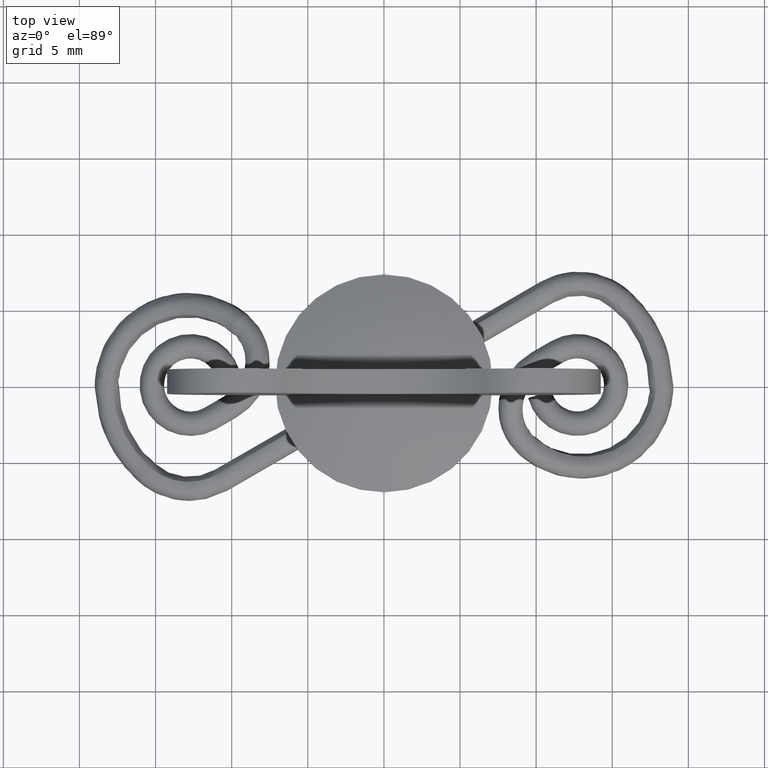
[diagram: clean part render]
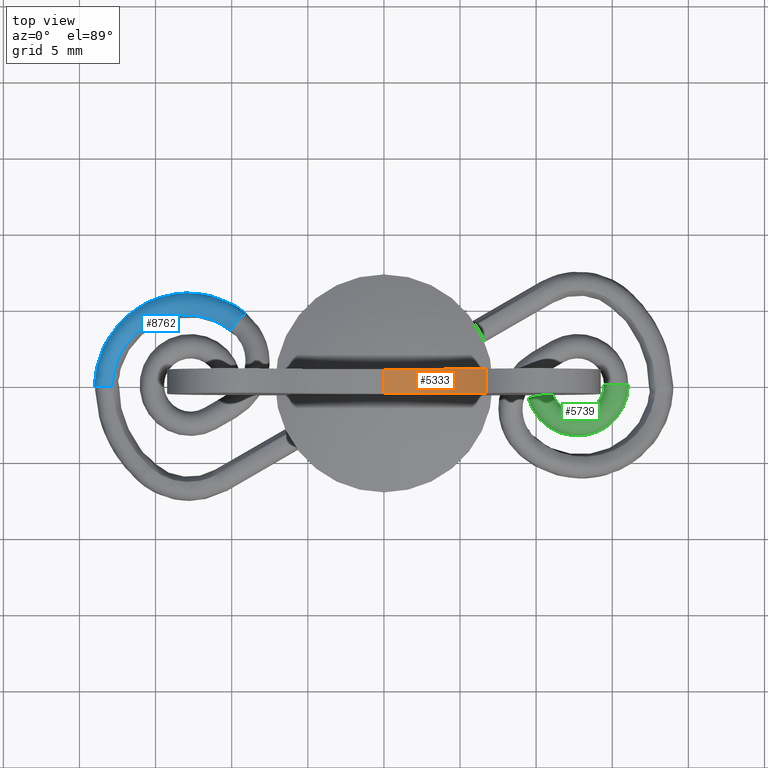
[diagram: same view with three faces highlighted in distinct colors, each labeled with its STEP entity id]
A machine part, top view with three faces highlighted in distinct colors.
Their STEP definitions:

[orange] entity #5333 — the highlighted cylindrical surface (partial cylindrical patch) has radius 10 mm, axis along (-0, -1, -0).
#6 = AXIS2_PLACEMENT_3D ( 'NONE', #5792, #1576, #6500 ) ;
#364 = DIRECTION ( 'NONE',  ( 0.0000000000000000000, 0.0000000000000000000, -1.000000000000000000 ) ) ;
#581 = DIRECTION ( 'NONE',  ( -0.0000000000000000000, -1.000000000000000000, -0.0000000000000000000 ) ) ;
#646 = CIRCLE ( 'NONE', #1977, 10.00000001227473900 ) ;
#1395 = ORIENTED_EDGE ( 'NONE', *, *, #6914, .F. ) ;
#1576 = DIRECTION ( 'NONE',  ( 0.0000000000000000000, 1.000000000000000000, 0.0000000000000000000 ) ) ;
#1684 = EDGE_LOOP ( 'NONE', ( #5639, #8971, #1395, #8544 ) ) ;
#1829 = CARTESIAN_POINT ( 'NONE',  ( -5.635136423459696800E-006, -0.8000000000000000400, 17.42661363855789600 ) ) ;
#1977 = AXIS2_PLACEMENT_3D ( 'NONE', #8289, #4066, #9002 ) ;
#2021 = VECTOR ( 'NONE', #581, 1000.000000000000000 ) ;
#2188 = EDGE_CURVE ( 'NONE', #4544, #8822, #646, .T. ) ;
#2514 = LINE ( 'NONE', #7103, #6032 ) ;
#2932 = CARTESIAN_POINT ( 'NONE',  ( -5.635136423459696800E-006, 0.8000000000000000400, 17.42661363855789600 ) ) ;
#3059 = CIRCLE ( 'NONE', #6, 10.00000001227473900 ) ;
#3079 = FACE_OUTER_BOUND ( 'NONE', #1684, .T. ) ;
#3582 = DIRECTION ( 'NONE',  ( -0.0000000000000000000, -1.000000000000000000, -0.0000000000000000000 ) ) ;
#3846 = CARTESIAN_POINT ( 'NONE',  ( 6.724131997629919000, -0.8000000000000000400, 20.02485890340211600 ) ) ;
#3921 = LINE ( 'NONE', #4804, #2021 ) ;
#4066 = DIRECTION ( 'NONE',  ( 0.0000000000000000000, 1.000000000000000000, 0.0000000000000000000 ) ) ;
#4544 = VERTEX_POINT ( 'NONE', #6043 ) ;
#4586 = DIRECTION ( 'NONE',  ( -0.0000000000000000000, -1.000000000000000000, -0.0000000000000000000 ) ) ;
#4804 = CARTESIAN_POINT ( 'NONE',  ( 6.724131997629919000, 0.8000000000000000400, 20.02485890340211600 ) ) ;
#5209 = VERTEX_POINT ( 'NONE', #1829 ) ;
#5333 = ADVANCED_FACE ( 'NONE', ( #3079 ), #8474, .F. ) ;
#5639 = ORIENTED_EDGE ( 'NONE', *, *, #2188, .T. ) ;
#5792 = CARTESIAN_POINT ( 'NONE',  ( -5.635136423459696800E-006, -0.8000000000000000400, 27.42661365083263200 ) ) ;
#6032 = VECTOR ( 'NONE', #3582, 1000.000000000000000 ) ;
#6043 = CARTESIAN_POINT ( 'NONE',  ( 6.724131997629919000, 0.8000000000000000400, 20.02485890340211600 ) ) ;
#6141 = EDGE_CURVE ( 'NONE', #8822, #5209, #2514, .T. ) ;
#6500 = DIRECTION ( 'NONE',  ( 0.0000000000000000000, 0.0000000000000000000, 1.000000000000000000 ) ) ;
#6914 = EDGE_CURVE ( 'NONE', #8325, #5209, #3059, .T. ) ;
#7103 = CARTESIAN_POINT ( 'NONE',  ( -5.635136423459696800E-006, 0.8000000000000000400, 17.42661363855789600 ) ) ;
#7940 = AXIS2_PLACEMENT_3D ( 'NONE', #8815, #4586, #364 ) ;
#8289 = CARTESIAN_POINT ( 'NONE',  ( -5.635136423459696800E-006, 0.8000000000000000400, 27.42661365083263200 ) ) ;
#8325 = VERTEX_POINT ( 'NONE', #3846 ) ;
#8474 = CYLINDRICAL_SURFACE ( 'NONE', #7940, 10.00000001227473900 ) ;
#8540 = EDGE_CURVE ( 'NONE', #4544, #8325, #3921, .T. ) ;
#8544 = ORIENTED_EDGE ( 'NONE', *, *, #8540, .F. ) ;
#8815 = CARTESIAN_POINT ( 'NONE',  ( -5.635136423459696800E-006, 0.8000000000000000400, 27.42661365083263200 ) ) ;
#8822 = VERTEX_POINT ( 'NONE', #2932 ) ;
#8971 = ORIENTED_EDGE ( 'NONE', *, *, #6141, .T. ) ;
#9002 = DIRECTION ( 'NONE',  ( 0.0000000000000000000, 0.0000000000000000000, 1.000000000000000000 ) ) ;

[blue] entity #8762 — the highlighted face is a freeform B-spline surface patch.
#3 = ORIENTED_EDGE ( 'NONE', *, *, #7400, .F. ) ;
#8 = CARTESIAN_POINT ( 'NONE',  ( -9.768532995544719100, 4.906569756069219900, 3.381184532729809800 ) ) ;
#9 = CARTESIAN_POINT ( 'NONE',  ( -8.971881715024416300, 4.690294804275380300, 3.047606700342779800 ) ) ;
#32 = CARTESIAN_POINT ( 'NONE',  ( -16.06924646159999900, 3.950608566597290300, 0.5705164725684209700 ) ) ;
#34 = CARTESIAN_POINT ( 'NONE',  ( -17.64670343298919900, -0.1458764542905052200, -0.5409566219409450700 ) ) ;
#43 = CARTESIAN_POINT ( 'NONE',  ( -18.98767522647510100, 0.5597870808116919300, -0.9660363556410559400 ) ) ;
#64 = CARTESIAN_POINT ( 'NONE',  ( -9.924039090798858700, 3.754565007771275100, 3.592961188734495000 ) ) ;
#66 = CARTESIAN_POINT ( 'NONE',  ( -15.93490138785172400, 3.841917922339947600, 0.4500486909538322100 ) ) ;
#73 = CARTESIAN_POINT ( 'NONE',  ( -11.68210218466944100, 5.936870851898860700, 2.263233349220080000 ) ) ;
#95 = CARTESIAN_POINT ( 'NONE',  ( -9.554661727052717900, 4.331166439904597700, 3.717784747622503900 ) ) ;
#97 = CARTESIAN_POINT ( 'NONE',  ( -18.11258799295290000, 1.156622809923391900, -0.2682907521951815000 ) ) ;
#107 = CARTESIAN_POINT ( 'NONE',  ( -19.02540823531909800, -0.2118278168927769900, -1.199450342325902200 ) ) ;
#130 = CARTESIAN_POINT ( 'NONE',  ( -10.82649532096734100, 4.833219173764680600, 3.228224994211045000 ) ) ;
#140 = CARTESIAN_POINT ( 'NONE',  ( -17.30923361188244800, 4.299696596317770200, -0.8493034807707540200 ) ) ;
#164 = CARTESIAN_POINT ( 'NONE',  ( -18.64262360598150200, -0.07779016860009138600, -0.4574146559506479500 ) ) ;
#172 = CARTESIAN_POINT ( 'NONE',  ( -9.120109885769180000, 4.820482544566129200, 2.771564784401280100 ) ) ;
#204 = CARTESIAN_POINT ( 'NONE',  ( -18.65190186030599800, 1.147494665132072100, -1.723083864828590000 ) ) ;
#235 = CARTESIAN_POINT ( 'NONE',  ( -10.79156305699757800, 5.534124488880420000, 1.615768451013415200 ) ) ;
#264 = CARTESIAN_POINT ( 'NONE',  ( -18.38053601355850100, -0.1419596119168192200, -1.962757721124605200 ) ) ;
#297 = CARTESIAN_POINT ( 'NONE',  ( -15.87290128841715000, 4.650681552149699800, -0.9050163461098500500 ) ) ;
#325 = CARTESIAN_POINT ( 'NONE',  ( -9.131010945654530500, 3.920522808085070500, 2.213263433559255100 ) ) ;
#357 = CARTESIAN_POINT ( 'NONE',  ( -17.62001322659165200, 1.210541778787426000, -1.789665159222795000 ) ) ;
#385 = CARTESIAN_POINT ( 'NONE',  ( -10.30986698857150000, 4.447975744631940600, 1.721662031969340100 ) ) ;
#414 = CARTESIAN_POINT ( 'NONE',  ( -17.58502915015569800, -0.07394772779781380600, -1.708888893800605000 ) ) ;
#442 = CARTESIAN_POINT ( 'NONE',  ( -13.87145915154610000, 4.583873978877620400, 0.3238538935414174700 ) ) ;
#443 = CARTESIAN_POINT ( 'NONE',  ( -17.52818981956972500, 1.704478339012705000, -0.3012551264814867200 ) ) ;
#468 = CARTESIAN_POINT ( 'NONE',  ( -18.99373992538325600, -0.03557822383203196300, -1.354193972562835100 ) ) ;
#471 = CARTESIAN_POINT ( 'NONE',  ( -9.661956014903969600, 3.351506731864100100, 2.524436385362789800 ) ) ;
#477 = CARTESIAN_POINT ( 'NONE',  ( -18.28326308313505100, -0.009728729235690099600, -0.3607310110446584900 ) ) ;
#608 = CARTESIAN_POINT ( 'NONE',  ( -18.40825223815262400, 1.399859068268680900, -1.792009864776690000 ) ) ;
#614 = CARTESIAN_POINT ( 'NONE',  ( -17.07866748119595000, 1.651771453133079800, -0.9728611073598380000 ) ) ;
#643 = CARTESIAN_POINT ( 'NONE',  ( -9.885511653547594000, 3.416506342553960400, 3.302595354853350000 ) ) ;
#645 = CARTESIAN_POINT ( 'NONE',  ( -10.67397540579454200, 3.889459637961415300, 2.506328910866145100 ) ) ;
#674 = CARTESIAN_POINT ( 'NONE',  ( -13.36533567259404100, 4.743307669380480500, 1.661709111369867400 ) ) ;
#677 = CARTESIAN_POINT ( 'NONE',  ( -17.50197999777105200, 0.2215542427453965100, -0.7133680462484060000 ) ) ;
#683 = CARTESIAN_POINT ( 'NONE',  ( -18.66532861416049700, 1.319062052627230100, -0.5324008141503170400 ) ) ;
#705 = CARTESIAN_POINT ( 'NONE',  ( -9.886305239303450100, 3.517565392468115200, 3.486038389884345000 ) ) ;
#707 = CARTESIAN_POINT ( 'NONE',  ( -13.28872362595698000, 4.614221022976539500, 1.514017731819294900 ) ) ;
#712 = CARTESIAN_POINT ( 'NONE',  ( -10.48677218345119900, 5.334504177243969600, 3.042503956782340000 ) ) ;
#713 = CARTESIAN_POINT ( 'NONE',  ( -8.926266839182194000, 4.555687350418741800, 2.679152848315538900 ) ) ;
#737 = CARTESIAN_POINT ( 'NONE',  ( -17.51726544870095000, 2.171777466068495000, -0.1122865724224532000 ) ) ;
#740 = CARTESIAN_POINT ( 'NONE',  ( -9.885511653547594000, 3.416506342553960400, 3.302595354853350000 ) ) ;
#748 = CARTESIAN_POINT ( 'NONE',  ( -19.00681099892830200, -0.08279238814164680000, -0.9750596929145359800 ) ) ;
#772 = CARTESIAN_POINT ( 'NONE',  ( -10.34438280210344100, 4.088832391082275000, 3.394751104075210100 ) ) ;
#775 = CARTESIAN_POINT ( 'NONE',  ( -17.34562586385447200, 2.108709360525155200, -0.2151683928266108500 ) ) ;
#783 = CARTESIAN_POINT ( 'NONE',  ( -14.50837467649773900, 5.988940267292709200, 0.9305246757927959600 ) ) ;
#806 = CARTESIAN_POINT ( 'NONE',  ( -9.851775149894223200, 3.951756044640168100, 3.676981504336629800 ) ) ;
#808 = CARTESIAN_POINT ( 'NONE',  ( -18.22785921321590100, 0.4605695355932880000, -0.3226460755007000100 ) ) ;
#817 = CARTESIAN_POINT ( 'NONE',  ( -8.883328521047921800, 4.614227499049239800, 3.123872081206124900 ) ) ;
#838 = CARTESIAN_POINT ( 'NONE',  ( -12.02272363767935900, 5.285702537932209600, 2.664152047356610300 ) ) ;
#848 = CARTESIAN_POINT ( 'NONE',  ( -18.48902142715770200, 2.292355849757810000, -1.405624026211133900 ) ) ;
#872 = CARTESIAN_POINT ( 'NONE',  ( -18.64236410940365100, -0.2104099493814044800, -0.4572922921868940400 ) ) ;
#882 = CARTESIAN_POINT ( 'NONE',  ( -9.842359793656569900, 5.301042149275920300, 2.430992981999109800 ) ) ;
#914 = CARTESIAN_POINT ( 'NONE',  ( -18.75352439988320100, 0.2596980362235005200, -1.771003249920704900 ) ) ;
#947 = CARTESIAN_POINT ( 'NONE',  ( -12.93058712676924000, 5.901497449893950500, 0.6071268785201889800 ) ) ;
#974 = CARTESIAN_POINT ( 'NONE',  ( -8.829757349104879100, 4.168486323048780300, 2.416128038673254900 ) ) ;
#1002 = CARTESIAN_POINT ( 'NONE',  ( -17.56113269868105000, 2.577995742407440400, -1.701089849182915200 ) ) ;
#1030 = CARTESIAN_POINT ( 'NONE',  ( -9.566507490519971000, 4.266784263596204800, 2.007908138106834900 ) ) ;
#1058 = CARTESIAN_POINT ( 'NONE',  ( -17.74064237331650100, 0.4821591261729110100, -1.846546974608325000 ) ) ;
#1087 = CARTESIAN_POINT ( 'NONE',  ( -11.42664747509049900, 4.870416505956580300, 1.195052143857459900 ) ) ;
#1122 = CARTESIAN_POINT ( 'NONE',  ( -17.58476425587599900, -0.2095076112886075100, -1.708763984788810100 ) ) ;
#1123 = CARTESIAN_POINT ( 'NONE',  ( -10.21023681221308100, 3.691891134430887300, 3.149473517986995000 ) ) ;
#1145 = CARTESIAN_POINT ( 'NONE',  ( -16.19803645338015100, 3.214057973920510000, -0.7732270703469540400 ) ) ;
#1146 = CARTESIAN_POINT ( 'NONE',  ( -17.75730070363640300, 0.8597020708087543800, -0.4092907328331960000 ) ) ;
#1169 = CARTESIAN_POINT ( 'NONE',  ( -18.95424845764468500, -0.03238319450385884800, -0.8402125817024913600 ) ) ;
#1173 = CARTESIAN_POINT ( 'NONE',  ( -9.939052695626950000, 3.586498364837320100, 2.393773418205530100 ) ) ;
#1180 = CARTESIAN_POINT ( 'NONE',  ( -18.56687726057462800, -0.02429792544078932300, -1.866808027427930200 ) ) ;
#1279 = CARTESIAN_POINT ( 'NONE',  ( -9.357463221734207100, 4.894355347365488400, 2.475825263789275700 ) ) ;
#1281 = CARTESIAN_POINT ( 'NONE',  ( -17.83308130174033900, 0.003575037662778945500, -0.4450332635628501100 ) ) ;
#1311 = CARTESIAN_POINT ( 'NONE',  ( -18.54769409373010100, 0.5579669057095139100, -1.857762679094852700 ) ) ;
#1314 = CARTESIAN_POINT ( 'NONE',  ( -18.28326308313505100, -0.009728729235690099600, -0.3607310110446584900 ) ) ;
#1319 = CARTESIAN_POINT ( 'NONE',  ( -17.30077266537975000, 0.8328257549577349200, -1.077593225805359800 ) ) ;
#1351 = CARTESIAN_POINT ( 'NONE',  ( -11.46387512897850100, 4.258098431058850300, 2.133857319656685000 ) ) ;
#1382 = CARTESIAN_POINT ( 'NONE',  ( -15.93490138785172400, 3.841917922339947600, 0.4500486909538322100 ) ) ;
#1383 = CARTESIAN_POINT ( 'NONE',  ( -17.50127947278725000, -0.1460560104287713900, -0.7130377186791508900 ) ) ;
#1390 = CARTESIAN_POINT ( 'NONE',  ( -18.79674162378709900, 0.5256144388033580100, -0.5943676833179549800 ) ) ;
#1411 = ORIENTED_EDGE ( 'NONE', *, *, #7830, .F. ) ;
#1413 = CARTESIAN_POINT ( 'NONE',  ( -9.984102456748100700, 3.600510039521679600, 3.439922808212005000 ) ) ;
#1415 = CARTESIAN_POINT ( 'NONE',  ( -15.80055631410345100, 3.733227278082605200, 0.3295809093392435000 ) ) ;
#1423 = CARTESIAN_POINT ( 'NONE',  ( -11.78637925588210000, 5.826078891804210800, 2.429683493617515100 ) ) ;
#1445 = CARTESIAN_POINT ( 'NONE',  ( -17.89374457393995100, 1.106569161319330000, -0.2898126237926739700 ) ) ;
#1449 = CARTESIAN_POINT ( 'NONE',  ( -9.983838495317975500, 3.499900080504762200, 3.256230032600582600 ) ) ;
#1457 = CARTESIAN_POINT ( 'NONE',  ( -19.00655854090204900, -0.2115864671246270000, -0.9749406481295540500 ) ) ;
#1478 = CARTESIAN_POINT ( 'NONE',  ( -10.95872608101441900, 4.454877095118670000, 3.105061904384520200 ) ) ;
#1480 = CARTESIAN_POINT ( 'NONE',  ( -17.71133249136074600, 1.073880100313302900, -0.3876147495799169800 ) ) ;
#1489 = CARTESIAN_POINT ( 'NONE',  ( -17.45130748473680200, 4.259168203791454700, -0.4571943393367250400 ) ) ;
#1510 = CARTESIAN_POINT ( 'NONE',  ( -10.01518163842338200, 3.604038733858089500, 3.383469178318174300 ) ) ;
#1512 = CARTESIAN_POINT ( 'NONE',  ( -18.24358138009284900, -0.07401506232220680900, -0.3300597513658505300 ) ) ;
#1523 = CARTESIAN_POINT ( 'NONE',  ( -9.181908721169449400, 4.867435107403920800, 2.983078713416774900 ) ) ;
#1546 = CARTESIAN_POINT ( 'NONE',  ( -14.59082872808780000, 5.332152630189200200, 1.453180374188287800 ) ) ;
#1557 = CARTESIAN_POINT ( 'NONE',  ( -18.79627134063325000, 1.159467928157218000, -1.550505535612219900 ) ) ;
#1583 = CARTESIAN_POINT ( 'NONE',  ( -9.526130686033269500, 4.215920481519975600, 3.777122907352884700 ) ) ;
#1591 = CARTESIAN_POINT ( 'NONE',  ( -10.86623165600072100, 5.778839474374539300, 1.948193494204804900 ) ) ;
#1624 = CARTESIAN_POINT ( 'NONE',  ( -18.75276345773565000, -0.1411735288415557900, -1.770644433067954900 ) ) ;
#1650 = CARTESIAN_POINT ( 'NONE',  ( -17.83308130174033900, 0.003575037662778945500, -0.4450332635628501100 ) ) ;
#1654 = CARTESIAN_POINT ( 'NONE',  ( -16.01814414479989800, 4.817109573133020500, -0.8487886531634509800 ) ) ;
#1660 = ORIENTED_EDGE ( 'NONE', *, *, #7054, .T. ) ;
#1685 = CARTESIAN_POINT ( 'NONE',  ( -8.924143258417141000, 4.248538395710814300, 2.371621035065735000 ) ) ;
#1715 = CARTESIAN_POINT ( 'NONE',  ( -18.00699673656069800, 1.317116358658646100, -1.911333862161094900 ) ) ;
#1743 = CARTESIAN_POINT ( 'NONE',  ( -10.20346005699443900, 4.646296850198080400, 1.707557689819750200 ) ) ;
#1776 = CARTESIAN_POINT ( 'NONE',  ( -17.75710723288400000, -0.07592666750509759200, -1.854310861924570300 ) ) ;
#1810 = CARTESIAN_POINT ( 'NONE',  ( -13.83010479916070100, 4.913282017226119800, 0.06171895278750290400 ) ) ;
#1838 = CARTESIAN_POINT ( 'NONE',  ( -9.517029558442430900, 3.441309205749070200, 2.377154169198814900 ) ) ;
#1839 = CARTESIAN_POINT ( 'NONE',  ( -10.76140099920055000, 4.054878250956054600, 2.889575969324312200 ) ) ;
#1859 = EDGE_LOOP ( 'NONE', ( #1660, #1998, #2658, #1411, #3, #7968 ) ) ;
#1866 = CARTESIAN_POINT ( 'NONE',  ( -17.08941722718019900, 1.697328426355265000, -1.193551328536446100 ) ) ;
#1867 = CARTESIAN_POINT ( 'NONE',  ( -17.83298521599411000, 0.2331414109653726100, -0.4449792258413237100 ) ) ;
#1898 = CARTESIAN_POINT ( 'NONE',  ( -18.61558786362175500, -0.02038957047488122400, -0.4523901170928122900 ) ) ;
#1902 = CARTESIAN_POINT ( 'NONE',  ( -10.47424014288168000, 3.938505878673955100, 2.141409587425985500 ) ) ;
#1974 = CARTESIAN_POINT ( 'NONE',  ( -9.059387980335978700, 4.674913595426780000, 3.222986224316580100 ) ) ;
#1998 = ORIENTED_EDGE ( 'NONE', *, *, #4697, .T. ) ;
#2003 = CARTESIAN_POINT ( 'NONE',  ( -10.06937655923673200, 5.318376435156800100, 2.140127597566219700 ) ) ;
#2029 = CARTESIAN_POINT ( 'NONE',  ( -18.56689290596277800, -0.01584194690611859200, -1.866815742327460500 ) ) ;
#2036 = CARTESIAN_POINT ( 'NONE',  ( -17.37462473376979900, 0.2228791633603010000, -1.112417642906051900 ) ) ;
#2067 = CARTESIAN_POINT ( 'NONE',  ( -13.19328460376284100, 4.555296153765080000, 1.318366593403322000 ) ) ;
#2096 = CARTESIAN_POINT ( 'NONE',  ( -17.34562586385447200, 2.108709360525155200, -0.2151683928266108500 ) ) ;
#2100 = CARTESIAN_POINT ( 'NONE',  ( -9.884718067791739700, 3.315447292639805100, 3.119152319822355400 ) ) ;
#2107 = CARTESIAN_POINT ( 'NONE',  ( -18.81470168870980000, -0.07976910830737471400, -0.6028366240747300400 ) ) ;
#2130 = CARTESIAN_POINT ( 'NONE',  ( -10.39038011969956100, 3.923643392443440600, 3.248345468518089700 ) ) ;
#2132 = CARTESIAN_POINT ( 'NONE',  ( -17.17398627900799800, 2.045641254981814600, -0.3180502132307684900 ) ) ;
#2136 = CARTESIAN_POINT ( 'NONE',  ( -14.56872628858789800, 5.877192263877930100, 1.117687557737770100 ) ) ;
#2161 = CARTESIAN_POINT ( 'NONE',  ( -18.00404189603999700, 0.4405266816032670200, -0.3418225408281394500 ) ) ;
#2163 = CARTESIAN_POINT ( 'NONE',  ( -10.38092992671303000, 3.815762028088375500, 3.068984395000697400 ) ) ;
#2171 = CARTESIAN_POINT ( 'NONE',  ( -9.090542325970609700, 4.570440243641269400, 3.485264951401045400 ) ) ;
#2197 = CARTESIAN_POINT ( 'NONE',  ( -12.07692984848720000, 4.877856408991990000, 2.577780878271354900 ) ) ;
#2198 = CARTESIAN_POINT ( 'NONE',  ( -17.81838145364727300, 0.4274370282502889500, -0.4380929256702071900 ) ) ;
#2208 = CARTESIAN_POINT ( 'NONE',  ( -18.62032871526555100, 2.270142883506530000, -1.008437978387002100 ) ) ;
#2232 = CARTESIAN_POINT ( 'NONE',  ( -18.24331657304480100, -0.2095222712659699800, -0.3299348834875299700 ) ) ;
#2243 = CARTESIAN_POINT ( 'NONE',  ( -9.911276277479769800, 5.352886106505939900, 2.639150634570540000 ) ) ;
#2264 = CARTESIAN_POINT ( 'NONE',  ( -17.24565092210600200, 3.770639792302959800, 0.2013178681478255100 ) ) ;
#2276 = CARTESIAN_POINT ( 'NONE',  ( -18.89895057350604900, 0.2610992011438960100, -1.598923196905204900 ) ) ;
#2300 = CARTESIAN_POINT ( 'NONE',  ( -9.817934218163051300, 4.463382149141344800, 3.639525029112105500 ) ) ;
#2308 = CARTESIAN_POINT ( 'NONE',  ( -13.08381122004335900, 6.159670742702791000, 0.9025096376208520100 ) ) ;
#2339 = CARTESIAN_POINT ( 'NONE',  ( -8.770504949176549700, 4.323228942695035200, 2.568784013941869800 ) ) ;
#2372 = CARTESIAN_POINT ( 'NONE',  ( -17.76348120226884900, 2.674566072603109700, -1.671789917643459900 ) ) ;
#2399 = CARTESIAN_POINT ( 'NONE',  ( -9.389589392340010200, 4.618506532074580000, 2.152143224102860000 ) ) ;
#2427 = CARTESIAN_POINT ( 'NONE',  ( -18.13821633416165100, 0.5248343983666250400, -1.973209529264140100 ) ) ;
#2457 = CARTESIAN_POINT ( 'NONE',  ( -11.36113981176464100, 5.084203160477800400, 1.161662042924213900 ) ) ;
#2487 = CARTESIAN_POINT ( 'NONE',  ( -17.75684512282019900, -0.2099730057871540000, -1.854187265790010000 ) ) ;
#2516 = B_SPLINE_CURVE_WITH_KNOTS ( 'NONE', 3,
 ( #3995, #8924, #4687, #468, #5403, #1169, #6104, #1898, #6825, #2596 ),
 .UNSPECIFIED., .F., .F.,
 ( 4, 2, 2, 2, 4 ),
 ( 0.0004378522064577345600, 0.0009543455030619533100, 0.001470838799666172200, 0.001987332096270390600, 0.002503825392874609500 ),
 .UNSPECIFIED. ) ;
#2518 = CARTESIAN_POINT ( 'NONE',  ( -16.30118231216680200, 3.459076571432254900, -1.103500056991894200 ) ) ;
#2548 = CARTESIAN_POINT ( 'NONE',  ( -9.795654109686379800, 3.677596321026110000, 2.245770745574229700 ) ) ;
#2549 = CARTESIAN_POINT ( 'NONE',  ( -11.57871913713041900, 4.436309052214422600, 2.504175419831673000 ) ) ;
#2574 = CARTESIAN_POINT ( 'NONE',  ( -17.31757770793204900, 0.8560557303501090700, -1.301138778970615900 ) ) ;
#2596 = CARTESIAN_POINT ( 'NONE',  ( -18.28326308313505100, -0.009728729235690099600, -0.3607310110446584900 ) ) ;
#2599 = CARTESIAN_POINT ( 'NONE',  ( -11.27226935645575900, 4.310937367428739900, 1.765104592896790100 ) ) ;
#2658 = ORIENTED_EDGE ( 'NONE', *, *, #6628, .T. ) ;
#2702 = CARTESIAN_POINT ( 'NONE',  ( -11.36565762624512900, 5.808693229380060600, 1.528875488580428500 ) ) ;
#2731 = CARTESIAN_POINT ( 'NONE',  ( -18.56687726057462800, -0.02429792544078932300, -1.866808027427930200 ) ) ;
#2738 = CARTESIAN_POINT ( 'NONE',  ( -17.37392210001905100, -0.1458867687621451800, -1.112086320962462100 ) ) ;
#2765 = CARTESIAN_POINT ( 'NONE',  ( -9.983838495317975500, 3.499900080504762200, 3.256230032600582600 ) ) ;
#2767 = CARTESIAN_POINT ( 'NONE',  ( -15.67876357197170000, 3.683612608160875100, 0.1463566799495322200 ) ) ;
#2793 = CARTESIAN_POINT ( 'NONE',  ( -17.71133249136074600, 1.073880100313302900, -0.3876147495799169800 ) ) ;
#2796 = CARTESIAN_POINT ( 'NONE',  ( -9.983574533887850300, 3.399290121487845300, 3.072537256989160200 ) ) ;
#2803 = CARTESIAN_POINT ( 'NONE',  ( -18.81444497634785100, -0.2108753438799504900, -0.6027155731880979900 ) ) ;
#2827 = CARTESIAN_POINT ( 'NONE',  ( -10.98373565458429900, 4.277185889267800100, 2.968552890112115400 ) ) ;
#2830 = CARTESIAN_POINT ( 'NONE',  ( -17.52892040878154800, 1.041191039307275900, -0.4854168753671599900 ) ) ;
#2838 = CARTESIAN_POINT ( 'NONE',  ( -17.46263902600269800, 4.176048435722365500, -0.2469163919677289700 ) ) ;
#2839 = CARTESIAN_POINT ( 'NONE',  ( -10.01723264264997400, 3.528218948095026800, 3.240483260157275500 ) ) ;
#2858 = B_SPLINE_CURVE_WITH_KNOTS ( 'NONE', 3,
 ( #8872, #3938, #5348, #1123, #6051, #1839, #6769, #2549, #7485, #3253, #8191, #3967, #8900, #4666, #443, #5377, #1146, #6081, #1867, #6798 ),
 .UNSPECIFIED., .F., .F.,
 ( 4, 2, 2, 2, 2, 2, 2, 2, 2, 4 ),
 ( -0.001340491261030530200, 0.0000000000000000000, 0.06250000000000000000, 0.1250000000000000000, 0.2500000000000000000, 0.5000000000000000000, 0.7500000000000000000, 0.8750000000000000000, 0.9375000000000000000, 0.9988965122503631300 ),
 .UNSPECIFIED. ) ;
#2862 = CARTESIAN_POINT ( 'NONE',  ( -18.01907447220605000, -0.07224214222457379900, -0.3489110451029355200 ) ) ;
#2865 = CARTESIAN_POINT ( 'NONE',  ( -10.96057881872529900, 4.161139588805659700, 2.795655086464455200 ) ) ;
#2875 = CARTESIAN_POINT ( 'NONE',  ( -9.388377542975868900, 4.823016189788919700, 3.344822875096429700 ) ) ;
#2894 = CARTESIAN_POINT ( 'NONE',  ( -9.130588481193664000, 4.662315517653190100, 3.365886489585917300 ) ) ;
#2896 = CARTESIAN_POINT ( 'NONE',  ( -14.48333697054438000, 4.920786789630439800, 1.443056730959716000 ) ) ;
#2898 = CARTESIAN_POINT ( 'NONE',  ( -17.83296366340977500, -0.07108437889291680000, -0.4449690628735152900 ) ) ;
#2906 = CARTESIAN_POINT ( 'NONE',  ( -18.92462616594950100, 1.148141469351533900, -1.151927274977349900 ) ) ;
#2929 = CARTESIAN_POINT ( 'NONE',  ( -9.670076285793719300, 4.042635751946440000, 3.773526157756519800 ) ) ;
#2939 = CARTESIAN_POINT ( 'NONE',  ( -10.94374136465154000, 5.834692602782700600, 2.152299072783860000 ) ) ;
#2955 = VERTEX_POINT ( 'NONE', #477 ) ;
#2963 = CARTESIAN_POINT ( 'NONE',  ( -18.28489144564320100, 2.002385829199555100, -0.2887286024214050200 ) ) ;
#2973 = CARTESIAN_POINT ( 'NONE',  ( -18.89818741793759900, -0.1409939727032900300, -1.598563336329750000 ) ) ;
#2999 = CARTESIAN_POINT ( 'NONE',  ( -10.48605048167742000, 4.906740516067749500, 3.324479561338990100 ) ) ;
#3011 = CARTESIAN_POINT ( 'NONE',  ( -16.28683429229549900, 5.034490861647700700, -0.6078530899342728900 ) ) ;
#3043 = CARTESIAN_POINT ( 'NONE',  ( -8.864079892467970000, 4.402593363960424900, 2.524659415588310200 ) ) ;
#3046 = CARTESIAN_POINT ( 'NONE',  ( -9.059387980335978700, 4.674913595426780000, 3.222986224316580100 ) ) ;
#3057 = B_SPLINE_CURVE_WITH_KNOTS ( 'NONE', 3,
 ( #8218, #4102, #1279, #6213, #2003, #6937, #2702, #7645, #3418, #8348, #4129, #9060, #4832, #608, #5535, #1311, #6242, #2029, #6969, #2731 ),
 .UNSPECIFIED., .F., .F.,
 ( 4, 2, 2, 2, 2, 2, 2, 2, 2, 4 ),
 ( 0.001173766719696431500, 0.06250000000000000000, 0.1250000000000000000, 0.2500000000000000000, 0.5000000000000000000, 0.7500000000000000000, 0.8750000000000000000, 0.9375000000000000000, 1.000000000000000000, 1.001000234254225700 ),
 .UNSPECIFIED. ) ;
#3072 = CARTESIAN_POINT ( 'NONE',  ( -18.22584015557364600, 1.367170007262600100, -1.889811990564044900 ) ) ;
#3097 = CARTESIAN_POINT ( 'NONE',  ( -10.07122929694760100, 5.024638928843970100, 1.830720779646155100 ) ) ;
#3126 = CARTESIAN_POINT ( 'NONE',  ( -18.15614945877250000, -0.07970177378298140500, -1.981665766509539800 ) ) ;
#3155 = CARTESIAN_POINT ( 'NONE',  ( -13.84935671204622100, 5.128913612564919500, -0.01163892291004788000 ) ) ;
#3191 = CARTESIAN_POINT ( 'NONE',  ( -9.226367654841308100, 3.706026493985310000, 2.232578429410945200 ) ) ;
#3226 = CARTESIAN_POINT ( 'NONE',  ( -17.25765384847705200, 1.831620427347380000, -1.554517400863179900 ) ) ;
#3252 = CARTESIAN_POINT ( 'NONE',  ( -10.34465130012810100, 4.039094058070610100, 1.986895028705689900 ) ) ;
#3253 = CARTESIAN_POINT ( 'NONE',  ( -13.36533567259404100, 4.743307669380480500, 1.661709111369867400 ) ) ;
#3280 = CARTESIAN_POINT ( 'NONE',  ( -17.39347987580320200, 0.2255970902560955100, -1.336929905886856000 ) ) ;
#3311 = CARTESIAN_POINT ( 'NONE',  ( -13.01864053579234200, 4.611040837443300500, 0.9416156956104538800 ) ) ;
#3418 = CARTESIAN_POINT ( 'NONE',  ( -14.14111172485898000, 5.859656132546135200, 0.2201298667012053500 ) ) ;
#3449 = EDGE_CURVE ( 'NONE', #6794, #7093, #9076, .T. ) ;
#3455 = CARTESIAN_POINT ( 'NONE',  ( -9.823888269888350100, 3.269316421905209800, 2.907181448073975300 ) ) ;
#3484 = CARTESIAN_POINT ( 'NONE',  ( -10.38092992671303000, 3.815762028088375500, 3.068984395000697400 ) ) ;
#3486 = CARTESIAN_POINT ( 'NONE',  ( -17.03516946860535000, 2.016852099778140100, -0.4932468644211000500 ) ) ;
#3494 = CARTESIAN_POINT ( 'NONE',  ( -14.61008064097332100, 5.547784225528960000, 1.379822498491683800 ) ) ;
#3514 = CARTESIAN_POINT ( 'NONE',  ( -17.81838145364727300, 0.4274370282502889500, -0.4380929256702071900 ) ) ;
#3516 = CARTESIAN_POINT ( 'NONE',  ( -10.37147973372650100, 3.707880663733310400, 2.889623321483304700 ) ) ;
#3523 = CARTESIAN_POINT ( 'NONE',  ( -9.235468782432230100, 4.480637769756200800, 3.632547167564975400 ) ) ;
#3541 = B_SPLINE_CURVE_WITH_KNOTS ( 'NONE', 3,
 ( #7751, #9, #4941, #713 ),
 .UNSPECIFIED., .F., .F.,
 ( 4, 4 ),
 ( -4.713980615806248900E-005, 0.0005423940293081928900 ),
 .UNSPECIFIED. ) ;
#3545 = CARTESIAN_POINT ( 'NONE',  ( -12.06529460318996000, 4.686308382808360500, 2.458551467462560100 ) ) ;
#3548 = CARTESIAN_POINT ( 'NONE',  ( -17.63272101125454900, 0.4143473748973109900, -0.5343633105122750400 ) ) ;
#3556 = CARTESIAN_POINT ( 'NONE',  ( -18.60957896928130100, 2.224585910284345000, -0.7877477572103930300 ) ) ;
#3577 = CARTESIAN_POINT ( 'NONE',  ( -18.01880717160445000, -0.2091054538224214900, -0.3487850014071859900 ) ) ;
#3579 = CARTESIAN_POINT ( 'NONE',  ( -12.01820582319839800, 4.561212469029468000, 2.296938601700272600 ) ) ;
#3587 = CARTESIAN_POINT ( 'NONE',  ( -10.11101154039310000, 5.303839865793340100, 3.004069958010580100 ) ) ;
#3608 = CARTESIAN_POINT ( 'NONE',  ( -16.95770677685330000, 3.464659561193915000, 0.2762852637112515100 ) ) ;
#3610 = CARTESIAN_POINT ( 'NONE',  ( -17.83269473490637600, -0.2088333322298252500, -0.4448422515522480500 ) ) ;
#3618 = CARTESIAN_POINT ( 'NONE',  ( -19.02630583750724800, 0.2597742805290455000, -1.199873600247993900 ) ) ;
#3645 = CARTESIAN_POINT ( 'NONE',  ( -9.958931607825340000, 4.287597621157120300, 3.637318486999324900 ) ) ;
#3656 = CARTESIAN_POINT ( 'NONE',  ( -13.17925024223748000, 6.218595611912809900, 1.098160776036824200 ) ) ;
#3680 = CARTESIAN_POINT ( 'NONE',  ( -18.55359939350865200, 1.011609029761189900, -0.4154359223179450200 ) ) ;
#3690 = CARTESIAN_POINT ( 'NONE',  ( -8.772092120688260100, 4.525347042523349300, 2.935670084003860300 ) ) ;
#3712 = CARTESIAN_POINT ( 'NONE',  ( -11.44456620787980100, 5.354046449036451000, 2.872498294275484600 ) ) ;
#3726 = CARTESIAN_POINT ( 'NONE',  ( -18.10676037196179800, 2.800702283689785200, -1.466026276835144000 ) ) ;
#3759 = CARTESIAN_POINT ( 'NONE',  ( -9.343592074744130100, 4.783695530713409900, 2.298548859659750300 ) ) ;
#3794 = CARTESIAN_POINT ( 'NONE',  ( -18.36203365133715000, 0.5448772523565359500, -1.954033063936919900 ) ) ;
#3818 = CARTESIAN_POINT ( 'NONE',  ( -11.30693360095680000, 5.492049289418020800, 1.248033212009708000 ) ) ;
#3843 = CARTESIAN_POINT ( 'NONE',  ( -18.15589265917909900, -0.2108606839025885000, -1.981544674489379700 ) ) ;
#3873 = CARTESIAN_POINT ( 'NONE',  ( -16.41502455727505000, 3.619466617340365100, -1.221461330463408100 ) ) ;
#3908 = CARTESIAN_POINT ( 'NONE',  ( -9.509496020439529600, 3.946132405484890100, 2.099071264190090200 ) ) ;
#3937 = CARTESIAN_POINT ( 'NONE',  ( -17.50366403839960200, 0.9245327852695800500, -1.670521754586374900 ) ) ;
#3938 = CARTESIAN_POINT ( 'NONE',  ( -10.02121736929222500, 3.531598185860457000, 3.238604290676359000 ) ) ;
#3966 = CARTESIAN_POINT ( 'NONE',  ( -11.15935316887750000, 4.419304058874788900, 1.602728162320265200 ) ) ;
#3967 = CARTESIAN_POINT ( 'NONE',  ( -15.93490138785172400, 3.841917922339947600, 0.4500486909538322100 ) ) ;
#3995 = CARTESIAN_POINT ( 'NONE',  ( -18.56687726057462800, -0.02429792544078932300, -1.866808027427930200 ) ) ;
#3998 = CARTESIAN_POINT ( 'NONE',  ( -17.39277293284930100, -0.1455390131191230100, -1.336596551969460000 ) ) ;
#4023 = CARTESIAN_POINT ( 'NONE',  ( -15.52905083249545000, 3.730549248100965400, -0.2421504083093090100 ) ) ;
#4102 = CARTESIAN_POINT ( 'NONE',  ( -9.126051878235111700, 4.724148032738665600, 2.584945635410057700 ) ) ;
#4129 = CARTESIAN_POINT ( 'NONE',  ( -17.02733181911725100, 4.163004256143757700, -1.140846671886979900 ) ) ;
#4168 = CARTESIAN_POINT ( 'NONE',  ( -9.922986495939049700, 3.353364250297790100, 2.860452385055275200 ) ) ;
#4196 = CARTESIAN_POINT ( 'NONE',  ( -10.96057881872529900, 4.161139588805659700, 2.795655086464455200 ) ) ;
#4199 = CARTESIAN_POINT ( 'NONE',  ( -17.38518618881635200, 1.026269153437772100, -0.6582947570847389500 ) ) ;
#4205 = CARTESIAN_POINT ( 'NONE',  ( -17.35949316721425000, 3.931029838210625000, 0.08335659467631079100 ) ) ;
#4227 = CARTESIAN_POINT ( 'NONE',  ( -17.83296366340977500, -0.07108437889291680000, -0.4449690628735152900 ) ) ;
#4229 = CARTESIAN_POINT ( 'NONE',  ( -10.93742198286629900, 4.045093288343520200, 2.622757282816794900 ) ) ;
#4235 = CARTESIAN_POINT ( 'NONE',  ( -9.531776128916430200, 4.731918233600359800, 3.492825547727730100 ) ) ;
#4259 = CARTESIAN_POINT ( 'NONE',  ( -14.39575904214880200, 4.727585666441730600, 1.359637551733788200 ) ) ;
#4261 = CARTESIAN_POINT ( 'NONE',  ( -17.64685285461349900, -0.06992661556125980000, -0.5410270806440951000 ) ) ;
#4271 = CARTESIAN_POINT ( 'NONE',  ( -18.90782112339720200, 1.124911493959269900, -0.9283817218118789500 ) ) ;
#4293 = CARTESIAN_POINT ( 'NONE',  ( -9.873920487008799500, 3.712056228136079800, 3.616594259559790200 ) ) ;
#4295 = CARTESIAN_POINT ( 'NONE',  ( -14.29907371527550100, 4.601410110208465900, 1.221411584577980900 ) ) ;
#4304 = CARTESIAN_POINT ( 'NONE',  ( -11.13534713717426100, 5.781853666412799500, 2.521051799544225000 ) ) ;
#4325 = CARTESIAN_POINT ( 'NONE',  ( -9.439578365699688300, 4.444847431555335700, 3.668714879553759600 ) ) ;
#4327 = CARTESIAN_POINT ( 'NONE',  ( -17.91566164600969900, 1.834681226329430100, -0.1754315352044185100 ) ) ;
#4336 = CARTESIAN_POINT ( 'NONE',  ( -19.02554479070585100, -0.1411632143699052000, -1.199514734046440000 ) ) ;
#4360 = CARTESIAN_POINT ( 'NONE',  ( -10.60040029680854100, 4.712643391320730400, 3.334838493294025200 ) ) ;
#4369 = CARTESIAN_POINT ( 'NONE',  ( -16.40862703442825000, 5.084105531568960500, -0.4246288605440894900 ) ) ;
#4390 = CARTESIAN_POINT ( 'NONE',  ( -18.64322970899730000, 0.2437993012106055000, -0.4577004595138030000 ) ) ;
#4399 = CARTESIAN_POINT ( 'NONE',  ( -8.864607815328209700, 4.603813281994289900, 2.892044966811159900 ) ) ;
#4433 = CARTESIAN_POINT ( 'NONE',  ( -18.59066432073159800, 1.432548129274761900, -1.694207738989334900 ) ) ;
#4462 = CARTESIAN_POINT ( 'NONE',  ( -10.04621972337774100, 5.202330134694600300, 1.967229793918439800 ) ) ;
#4489 = CARTESIAN_POINT ( 'NONE',  ( -18.38065636665935200, -0.08147469388062869600, -1.962814472772455000 ) ) ;
#4518 = CARTESIAN_POINT ( 'NONE',  ( -13.95684846958962100, 5.540279453124640900, -0.001515279680528249900 ) ) ;
#4550 = CARTESIAN_POINT ( 'NONE',  ( -9.082422055080920500, 3.879311223558890000, 2.236175179007280400 ) ) ;
#4576 = CARTESIAN_POINT ( 'NONE',  ( -17.41410475081830000, 1.919528507439834900, -1.692570483324995000 ) ) ;
#4606 = CARTESIAN_POINT ( 'NONE',  ( -10.09920120159734000, 4.335605228399540300, 1.820999984097695100 ) ) ;
#4635 = CARTESIAN_POINT ( 'NONE',  ( -17.58560949107315000, 0.2336092486809059900, -1.709162549428914900 ) ) ;
#4665 = CARTESIAN_POINT ( 'NONE',  ( -12.94051091897289900, 4.725367123894519800, 0.7628359052364629400 ) ) ;
#4666 = CARTESIAN_POINT ( 'NONE',  ( -17.34562586385447200, 2.108709360525155200, -0.2151683928266108500 ) ) ;
#4687 = CARTESIAN_POINT ( 'NONE',  ( -18.84363535666201300, -0.03208847517526353800, -1.658943132687624300 ) ) ;
#4691 = CARTESIAN_POINT ( 'NONE',  ( -9.616502701225860200, 3.312958005350215000, 2.545869571847784800 ) ) ;
#4697 = EDGE_CURVE ( 'NONE', #5205, #5551, #3057, .T. ) ;
#4832 = CARTESIAN_POINT ( 'NONE',  ( -18.17080637689222300, 2.217435997626795000, -1.680043959265129900 ) ) ;
#4840 = CARTESIAN_POINT ( 'NONE',  ( -16.90156181223844800, 2.044086968798620100, -0.8893481899688029400 ) ) ;
#4873 = CARTESIAN_POINT ( 'NONE',  ( -10.30669841557304200, 3.658635564451560000, 2.679515760978429900 ) ) ;
#4897 = CARTESIAN_POINT ( 'NONE',  ( -12.01820582319839800, 4.561212469029468000, 2.296938601700272600 ) ) ;
#4900 = CARTESIAN_POINT ( 'NONE',  ( -17.48750397553694900, 0.4083721299726440500, -0.7065419810179449600 ) ) ;
#4909 = CARTESIAN_POINT ( 'NONE',  ( -18.44134234798444900, 2.090293909292454600, -0.4267816848836610300 ) ) ;
#4931 = CARTESIAN_POINT ( 'NONE',  ( -17.83269473490637600, -0.2088333322298252500, -0.4448422515522480500 ) ) ;
#4933 = CARTESIAN_POINT ( 'NONE',  ( -11.97111704320683900, 4.436116555250575500, 2.135325735937985100 ) ) ;
#4940 = CARTESIAN_POINT ( 'NONE',  ( -10.24060038314669900, 5.203251686396559900, 3.158584516731110200 ) ) ;
#4941 = CARTESIAN_POINT ( 'NONE',  ( -8.923911486146593600, 4.646344666120215900, 2.849896540983999600 ) ) ;
#4961 = CARTESIAN_POINT ( 'NONE',  ( -16.78537798858374700, 3.320953551069765200, 0.2328297491226125100 ) ) ;
#4964 = CARTESIAN_POINT ( 'NONE',  ( -17.64658229820829800, -0.2085612106372289900, -0.5408995016973100500 ) ) ;
#4973 = CARTESIAN_POINT ( 'NONE',  ( -19.00745069547389900, 0.2570563536333054800, -0.9753613372669740500 ) ) ;
#4999 = CARTESIAN_POINT ( 'NONE',  ( -10.15715143681398100, 3.952249166143790400, 3.483038721486480400 ) ) ;
#5001 = CARTESIAN_POINT ( 'NONE',  ( -16.63334366026557400, 3.227102153499572500, 0.1207032095713972700 ) ) ;
#5009 = CARTESIAN_POINT ( 'NONE',  ( -13.35389431020702000, 6.162850928235069900, 1.474911673829214300 ) ) ;
#5030 = CARTESIAN_POINT ( 'NONE',  ( -9.759941133522485000, 4.085304514194882100, 3.721325167410595400 ) ) ;
#5032 = CARTESIAN_POINT ( 'NONE',  ( -18.16207875587305100, 0.9260943087882699300, -0.2916277691279815000 ) ) ;
#5040 = CARTESIAN_POINT ( 'NONE',  ( -8.832921918591649700, 4.571477913257940200, 3.147640955752234700 ) ) ;
#5066 = CARTESIAN_POINT ( 'NONE',  ( -11.52674410311374100, 5.144939675875369800, 2.898027666027245300 ) ) ;
#5076 = CARTESIAN_POINT ( 'NONE',  ( -18.24557718236445000, 2.829491438893689800, -1.290829625644814000 ) ) ;
#5100 = CARTESIAN_POINT ( 'NONE',  ( -18.64249397388280000, -0.1432077538334510000, -0.4573535288575980000 ) ) ;
#5111 = CARTESIAN_POINT ( 'NONE',  ( -9.362492460716969900, 4.999458259423599700, 2.657271006694535300 ) ) ;
#5113 = B_SPLINE_SURFACE_WITH_KNOTS ( 'NONE', 3, 3, ( 
 ( #643, #8387, #2765, #7711, #3484, #8415, #4196, #9125, #4897, #674, #5600, #1382, #6309, #2096, #7027, #2793, #7740, #3514, #8445, #4227, #9155, #4931 ),
 ( #705, #5636, #1413, #6340, #2130, #7064, #2827, #7773, #3545, #8482, #4259, #32, #4961, #737, #5664, #1445, #6372, #2161, #7098, #2862, #7805, #3577 ),
 ( #8517, #4293, #64, #4999, #772, #5697, #1478, #6409, #2197, #7131, #2896, #7840, #3608, #8552, #4327, #97, #5032, #808, #5732, #1512, #6442, #2232 ),
 ( #7161, #2929, #7875, #3645, #8583, #4360, #130, #5066, #838, #5766, #1546, #6476, #2264, #7197, #2963, #7908, #3680, #8617, #4390, #164, #5100, #872 ),
 ( #5800, #1583, #6508, #2300, #7229, #2999, #7937, #3712, #7062, #7721, #3494, #8424, #4205, #9133, #4909, #683, #5610, #1390, #6319, #2107, #7039, #2803 ),
 ( #7750, #3523, #8454, #4235, #8, #4940, #712, #5644, #1423, #6349, #2136, #7073, #2838, #7783, #3556, #8493, #4271, #43, #4973, #748, #5675, #1457 ),
 ( #6384, #2171, #7108, #2875, #7815, #3587, #8529, #4304, #73, #5009, #783, #5708, #1489, #6419, #2208, #7141, #2906, #7852, #3618, #8563, #4336, #107 ),
 ( #5040, #817, #5745, #1523, #6452, #2243, #7173, #2939, #7882, #3656, #8593, #4369, #140, #5076, #848, #5775, #1557, #6484, #2276, #7207, #2973, #7917 ),
 ( #3690, #8626, #4399, #172, #5111, #882, #5808, #1591, #6518, #2308, #7237, #3011, #7950, #3726, #8658, #4433, #204, #5139, #914, #5844, #1624, #6555 ),
 ( #2339, #7274, #3043, #7985, #3759, #8693, #4462, #235, #5171, #947, #5879, #1654, #6586, #2372, #7304, #3072, #8012, #3794, #8723, #4489, #264, #5203 ),
 ( #974, #5904, #1685, #6618, #2399, #7333, #3097, #8039, #3818, #8752, #4518, #297, #5232, #1002, #5933, #1715, #6647, #2427, #7360, #3126, #8065, #3843 ),
 ( #8777, #4550, #325, #5261, #1030, #5961, #1743, #6675, #2457, #7389, #3155, #8095, #3873, #8807, #4576, #357, #5291, #1058, #5992, #1776, #6708, #2487 ),
 ( #7425, #3191, #8127, #3908, #8840, #4606, #385, #5324, #1087, #6023, #1810, #6742, #2518, #7457, #3226, #8160, #3937, #8871, #4635, #414, #5347, #1122 ),
 ( #6050, #1838, #6768, #2548, #7484, #3252, #8190, #3966, #8899, #4665, #442, #5376, #1145, #6080, #1866, #6797, #2574, #7515, #3280, #8220, #3998, #8928 ),
 ( #4691, #471, #5407, #1173, #6109, #1902, #6828, #2599, #7544, #3311, #8246, #4023, #8961, #4840, #614, #5539, #1319, #6248, #2036, #6975, #2738, #7679 ),
 ( #3455, #8390, #4168, #9098, #4873, #645, #5569, #1351, #6284, #2067, #7005, #2767, #7713, #3486, #8417, #4199, #9128, #4900, #677, #5602, #1383, #6312 ),
 ( #2100, #7030, #2796, #7743, #3516, #8447, #4229, #9156, #4933, #707, #5640, #1415, #6342, #2132, #7067, #2830, #7775, #3548, #8484, #4261, #34, #4964 ),
 ( #740, #5667, #1449, #6374, #2163, #7100, #2865, #7808, #3579, #8521, #4295, #66, #5001, #775, #5700, #1480, #6411, #2198, #7132, #2898, #7843, #3610 ) ),
 .UNSPECIFIED., .T., .F., .F.,
 ( 4, 2, 2, 2, 2, 2, 2, 2, 4 ),
 ( 4, 2, 2, 2, 2, 2, 2, 2, 2, 2, 4 ),
 ( 0.0000000000000000000, 0.1250000000000000000, 0.2500000000000000000, 0.3750000000000000000, 0.5000000000000000000, 0.6250000000000000000, 0.7500000000000000000, 0.8750000000000000000, 1.000000000000000000 ),
 ( -0.01559278893798390000, 0.0000000000000000000, 0.06250000000000000000, 0.1250000000000000000, 0.2500000000000000000, 0.5000000000000000000, 0.7500000000000000000, 0.8750000000000000000, 0.9375000000000000000, 1.000000000000000000, 1.016565988847330000 ),
 .UNSPECIFIED. ) ;
#5139 = CARTESIAN_POINT ( 'NONE',  ( -18.73335453612304800, 0.5710565590624919800, -1.761492294252785100 ) ) ;
#5171 = CARTESIAN_POINT ( 'NONE',  ( -11.31856884625355900, 5.683597315601409700, 1.367262622818022200 ) ) ;
#5203 = CARTESIAN_POINT ( 'NONE',  ( -18.38040206061944900, -0.2112775013461364900, -1.962694556569720000 ) ) ;
#5205 = VERTEX_POINT ( 'NONE', #6041 ) ;
#5232 = CARTESIAN_POINT ( 'NONE',  ( -16.70296870252954900, 3.925446848449859700, -1.296428726027734100 ) ) ;
#5261 = CARTESIAN_POINT ( 'NONE',  ( -9.368498630777701000, 4.121916933469179900, 2.101277806302635400 ) ) ;
#5291 = CARTESIAN_POINT ( 'NONE',  ( -17.67179943782055000, 0.9693581945480800300, -1.814084578464330000 ) ) ;
#5324 = CARTESIAN_POINT ( 'NONE',  ( -10.96305028574976100, 4.738744584804859300, 1.413658098165296000 ) ) ;
#5347 = CARTESIAN_POINT ( 'NONE',  ( -17.58488985318944800, -0.1445135861835930000, -1.708823209307899900 ) ) ;
#5348 = CARTESIAN_POINT ( 'NONE',  ( -10.02515724253947300, 3.534939341992018800, 3.236746471494381900 ) ) ;
#5376 = CARTESIAN_POINT ( 'NONE',  ( -15.50205274115754900, 3.826811529986195100, -0.4450409055205970500 ) ) ;
#5377 = CARTESIAN_POINT ( 'NONE',  ( -17.71133249136074600, 1.073880100313302900, -0.3876147495799169800 ) ) ;
#5403 = CARTESIAN_POINT ( 'NONE',  ( -19.01658333232473600, -0.03560133348332285300, -1.175254788273936400 ) ) ;
#5407 = CARTESIAN_POINT ( 'NONE',  ( -9.715372213032720700, 3.396811900820454700, 2.499248357402525000 ) ) ;
#5535 = CARTESIAN_POINT ( 'NONE',  ( -18.46809812769307500, 1.121265153500623100, -1.820229767949300000 ) ) ;
#5536 = CARTESIAN_POINT ( 'NONE',  ( -18.13024725073158200, -0.004962933660845859900, -0.3452855531200782500 ) ) ;
#5539 = CARTESIAN_POINT ( 'NONE',  ( -17.25623041653734900, 1.040385106477171900, -1.056589645457901800 ) ) ;
#5551 = VERTEX_POINT ( 'NONE', #1180 ) ;
#5569 = CARTESIAN_POINT ( 'NONE',  ( -10.86638392942120000, 3.992121080680975300, 2.415600041297004900 ) ) ;
#5600 = CARTESIAN_POINT ( 'NONE',  ( -14.29907371527550100, 4.601410110208465900, 1.221411584577980900 ) ) ;
#5602 = CARTESIAN_POINT ( 'NONE',  ( -17.50143022336184700, -0.06939826762143319600, -0.7131088040393139800 ) ) ;
#5610 = CARTESIAN_POINT ( 'NONE',  ( -18.72173479293004700, 1.056434439039690000, -0.5589987461961178900 ) ) ;
#5636 = CARTESIAN_POINT ( 'NONE',  ( -9.932563849972400000, 3.556797087305985100, 3.464225471336189500 ) ) ;
#5640 = CARTESIAN_POINT ( 'NONE',  ( -14.20238838840220000, 4.475234553975200300, 1.083185617422174100 ) ) ;
#5644 = CARTESIAN_POINT ( 'NONE',  ( -11.24826332475206000, 5.673486974966279700, 2.683428230120514800 ) ) ;
#5664 = CARTESIAN_POINT ( 'NONE',  ( -17.70515640405779900, 1.755917400442264900, -0.2008852148358015200 ) ) ;
#5667 = CARTESIAN_POINT ( 'NONE',  ( -9.931372515156608600, 3.455400708416405100, 3.280969992042852100 ) ) ;
#5675 = CARTESIAN_POINT ( 'NONE',  ( -19.00669395787555200, -0.1415109700129157900, -0.9750045030394428600 ) ) ;
#5697 = CARTESIAN_POINT ( 'NONE',  ( -10.74778389212355900, 4.342359513559030000, 3.204530191868935100 ) ) ;
#5700 = CARTESIAN_POINT ( 'NONE',  ( -17.52818981956972500, 1.704478339012705000, -0.3012551264814867200 ) ) ;
#5708 = CARTESIAN_POINT ( 'NONE',  ( -16.55833977390450000, 5.037168891628859900, -0.03612177228429654800 ) ) ;
#5730 = CARTESIAN_POINT ( 'NONE',  ( -9.978787626204384900, 3.710615370887696300, 3.505634022367084300 ) ) ;
#5732 = CARTESIAN_POINT ( 'NONE',  ( -18.24416213734850300, 0.2337933187171714900, -0.3303336033156010200 ) ) ;
#5745 = CARTESIAN_POINT ( 'NONE',  ( -8.925195853277010400, 4.649739153184289500, 3.104129838744984900 ) ) ;
#5766 = CARTESIAN_POINT ( 'NONE',  ( -13.54083678479862000, 5.490909807242999800, 1.948296600206365100 ) ) ;
#5775 = CARTESIAN_POINT ( 'NONE',  ( -18.73439854069769700, 1.447470015144045800, -1.521329857271760000 ) ) ;
#5800 = CARTESIAN_POINT ( 'NONE',  ( -9.477286524705109000, 4.174495994183944300, 3.800155023907985100 ) ) ;
#5808 = CARTESIAN_POINT ( 'NONE',  ( -10.09253339509572100, 5.434422735619000000, 2.313025401213999900 ) ) ;
#5844 = CARTESIAN_POINT ( 'NONE',  ( -18.75287798425199900, -0.08379022054391389900, -1.770698437231299900 ) ) ;
#5879 = CARTESIAN_POINT ( 'NONE',  ( -14.04442639798519800, 5.733480576312870400, 0.08190389954539870100 ) ) ;
#5904 = CARTESIAN_POINT ( 'NONE',  ( -8.878577853865840200, 4.209890747369164500, 2.393107077204009900 ) ) ;
#5933 = CARTESIAN_POINT ( 'NONE',  ( -17.78333455045179800, 2.087233110309965100, -1.805867550542860100 ) ) ;
#5961 = CARTESIAN_POINT ( 'NONE',  ( -9.984851386466248300, 4.529702353146560300, 1.810641052142774900 ) ) ;
#5992 = CARTESIAN_POINT ( 'NONE',  ( -17.75770086227980100, 0.2388541426787405000, -1.854590783640460000 ) ) ;
#6023 = CARTESIAN_POINT ( 'NONE',  ( -12.84675100273720000, 5.062375304389870000, 0.5254124350429328900 ) ) ;
#6041 = CARTESIAN_POINT ( 'NONE',  ( -8.926266839182194000, 4.555687350418741800, 2.679152848315538900 ) ) ;
#6050 = CARTESIAN_POINT ( 'NONE',  ( -9.471223976106140100, 3.402461721959530100, 2.398753465461795000 ) ) ;
#6051 = CARTESIAN_POINT ( 'NONE',  ( -10.38092992671303000, 3.815762028088375500, 3.068984395000697400 ) ) ;
#6080 = CARTESIAN_POINT ( 'NONE',  ( -16.90759369987019800, 2.099943285255385200, -1.107813738625199800 ) ) ;
#6081 = CARTESIAN_POINT ( 'NONE',  ( -17.81784223877226800, 0.4312530216827651400, -0.4378386627345406400 ) ) ;
#6104 = CARTESIAN_POINT ( 'NONE',  ( -18.86723642453873500, -0.02908352619509930700, -0.6836574100543019200 ) ) ;
#6109 = CARTESIAN_POINT ( 'NONE',  ( -10.10305113521612000, 3.705223255733450100, 2.316441121514320100 ) ) ;
#6213 = CARTESIAN_POINT ( 'NONE',  ( -9.823850684074109600, 5.187467493511090500, 2.255903576112607400 ) ) ;
#6242 = CARTESIAN_POINT ( 'NONE',  ( -18.56740582145340200, 0.2566288173624415300, -1.867057603975754900 ) ) ;
#6248 = CARTESIAN_POINT ( 'NONE',  ( -17.35995090512580000, 0.4140242715693799900, -1.105498303470930000 ) ) ;
#6284 = CARTESIAN_POINT ( 'NONE',  ( -11.88915465818064000, 4.379013393297860500, 1.933319785205765100 ) ) ;
#6309 = CARTESIAN_POINT ( 'NONE',  ( -16.63334366026557400, 3.227102153499572500, 0.1207032095713972700 ) ) ;
#6312 = CARTESIAN_POINT ( 'NONE',  ( -17.50115892475529800, -0.2084371362540755100, -0.7129808751128190500 ) ) ;
#6319 = CARTESIAN_POINT ( 'NONE',  ( -18.81532108020395100, 0.2490441952084405400, -0.6031286937249160700 ) ) ;
#6340 = CARTESIAN_POINT ( 'NONE',  ( -10.21315327159276100, 3.794750258801839600, 3.331915527073309800 ) ) ;
#6342 = CARTESIAN_POINT ( 'NONE',  ( -16.48130933194740100, 3.133250755929379400, 0.008576670020182020800 ) ) ;
#6349 = CARTESIAN_POINT ( 'NONE',  ( -13.43202392702549900, 6.048524641783839000, 1.653691464202724900 ) ) ;
#6372 = CARTESIAN_POINT ( 'NONE',  ( -17.94110443624955000, 0.8859315824402029800, -0.3121448297124849700 ) ) ;
#6374 = CARTESIAN_POINT ( 'NONE',  ( -10.21023681221308100, 3.691891134430887300, 3.149473517986995000 ) ) ;
#6384 = CARTESIAN_POINT ( 'NONE',  ( -9.040307487254141300, 4.527836329812940300, 3.508952831978430000 ) ) ;
#6409 = CARTESIAN_POINT ( 'NONE',  ( -11.61275253024279900, 4.746021488103820300, 2.796660388233570300 ) ) ;
#6411 = CARTESIAN_POINT ( 'NONE',  ( -17.75730070363640300, 0.8597020708087543800, -0.4092907328331960000 ) ) ;
#6419 = CARTESIAN_POINT ( 'NONE',  ( -18.37918483873225000, 2.802256569873209800, -0.8947283000975621000 ) ) ;
#6440 = CARTESIAN_POINT ( 'NONE',  ( -10.01723264264997400, 3.528218948095026800, 3.240483260157275500 ) ) ;
#6442 = CARTESIAN_POINT ( 'NONE',  ( -18.24344224680825000, -0.1444886848462909900, -0.3299941440560844600 ) ) ;
#6452 = CARTESIAN_POINT ( 'NONE',  ( -9.427273778870889100, 5.048703358705120400, 2.867378567199640100 ) ) ;
#6476 = CARTESIAN_POINT ( 'NONE',  ( -16.44476182917100000, 4.471396793944100200, 0.5789714184346019800 ) ) ;
#6484 = CARTESIAN_POINT ( 'NONE',  ( -18.87857157184020100, 0.5770318039871590300, -1.589313623746895000 ) ) ;
#6508 = CARTESIAN_POINT ( 'NONE',  ( -9.571640938885449800, 4.254521349656524600, 3.755662871605749900 ) ) ;
#6518 = CARTESIAN_POINT ( 'NONE',  ( -11.41274640623670000, 5.933789143158710600, 1.690488354342835100 ) ) ;
#6555 = CARTESIAN_POINT ( 'NONE',  ( -18.75262693401559800, -0.2118217445313290100, -1.770580056279599900 ) ) ;
#6578 = VERTEX_POINT ( 'NONE', #1650 ) ;
#6586 = CARTESIAN_POINT ( 'NONE',  ( -16.87529749079909900, 4.069152858573565000, -1.252973211438195700 ) ) ;
#6618 = CARTESIAN_POINT ( 'NONE',  ( -9.170278801788830600, 4.457265388482450200, 2.255557571815829800 ) ) ;
#6628 = EDGE_CURVE ( 'NONE', #5551, #2955, #2516, .T. ) ;
#6647 = CARTESIAN_POINT ( 'NONE',  ( -18.06332007545620000, 1.054872915520999900, -1.937892731654729900 ) ) ;
#6675 = CARTESIAN_POINT ( 'NONE',  ( -10.88087239051630200, 4.947851357965940400, 1.388128726413300000 ) ) ;
#6708 = CARTESIAN_POINT ( 'NONE',  ( -17.75697291684204900, -0.1438422292985989900, -1.854247526151299800 ) ) ;
#6742 = CARTESIAN_POINT ( 'NONE',  ( -15.55901710202514800, 4.110571251276945200, -0.7535373355856630500 ) ) ;
#6768 = CARTESIAN_POINT ( 'NONE',  ( -9.569624422098680600, 3.485917879169299700, 2.352353435662020200 ) ) ;
#6769 = CARTESIAN_POINT ( 'NONE',  ( -10.96057881872529900, 4.161139588805659700, 2.795655086464455200 ) ) ;
#6794 = VERTEX_POINT ( 'NONE', #1974 ) ;
#6797 = CARTESIAN_POINT ( 'NONE',  ( -17.27180295229795000, 1.069336021708502200, -1.279554018819383900 ) ) ;
#6798 = CARTESIAN_POINT ( 'NONE',  ( -17.83308130174033900, 0.003575037662778945500, -0.4450332635628501100 ) ) ;
#6825 = CARTESIAN_POINT ( 'NONE',  ( -18.45449154576428100, -0.01511347722488194100, -0.3780148204519195900 ) ) ;
#6828 = CARTESIAN_POINT ( 'NONE',  ( -10.66865574670725900, 4.042234655373224700, 2.049734293477029700 ) ) ;
#6937 = CARTESIAN_POINT ( 'NONE',  ( -10.82889735649915000, 5.656481981627480100, 1.781980972609109800 ) ) ;
#6969 = CARTESIAN_POINT ( 'NONE',  ( -18.56688488636944000, -0.02008952672386022500, -1.866811960745310200 ) ) ;
#6975 = CARTESIAN_POINT ( 'NONE',  ( -17.37407158944250100, -0.06989872468802960100, -1.112156811635721900 ) ) ;
#7005 = CARTESIAN_POINT ( 'NONE',  ( -14.09778640718742100, 4.417638500633435300, 0.8918552071022299900 ) ) ;
#7027 = CARTESIAN_POINT ( 'NONE',  ( -17.52818981956972500, 1.704478339012705000, -0.3012551264814867200 ) ) ;
#7030 = CARTESIAN_POINT ( 'NONE',  ( -9.930181180340820600, 3.354004329526825100, 3.097714512749514700 ) ) ;
#7039 = CARTESIAN_POINT ( 'NONE',  ( -18.81457703753540000, -0.1425363969484564100, -0.6027778457010029000 ) ) ;
#7054 = EDGE_CURVE ( 'NONE', #6794, #5205, #3541, .T. ) ;
#7062 = CARTESIAN_POINT ( 'NONE',  ( -11.95721597435302100, 5.499489192453429700, 2.630761946423604900 ) ) ;
#7064 = CARTESIAN_POINT ( 'NONE',  ( -10.77991010878290000, 4.168452906720914600, 3.064665375210815100 ) ) ;
#7067 = CARTESIAN_POINT ( 'NONE',  ( -17.35122323508165100, 1.653039277583145100, -0.4016250381271719300 ) ) ;
#7073 = CARTESIAN_POINT ( 'NONE',  ( -16.58533786524235200, 4.940906609743160900, 0.1667687249255674900 ) ) ;
#7093 = VERTEX_POINT ( 'NONE', #2839 ) ;
#7098 = CARTESIAN_POINT ( 'NONE',  ( -18.01964332825394900, 0.2290938453880190000, -0.3491792851228080500 ) ) ;
#7100 = CARTESIAN_POINT ( 'NONE',  ( -10.76140099920055000, 4.054878250956054600, 2.889575969324312200 ) ) ;
#7108 = CARTESIAN_POINT ( 'NONE',  ( -9.132810136183289600, 4.606291502661640000, 3.465333866397790200 ) ) ;
#7116 = B_SPLINE_CURVE_WITH_KNOTS ( 'NONE', 3,
 ( #1281, #9064, #5536, #1314 ),
 .UNSPECIFIED., .F., .F.,
 ( 4, 4 ),
 ( 0.002003189385395580700, 0.002464742195857019200 ),
 .UNSPECIFIED. ) ;
#7131 = CARTESIAN_POINT ( 'NONE',  ( -13.49878926197634000, 5.070052951433429400, 1.907313193987240100 ) ) ;
#7132 = CARTESIAN_POINT ( 'NONE',  ( -17.83352474982392600, 0.2260246265269055000, -0.4452336391778575200 ) ) ;
#7141 = CARTESIAN_POINT ( 'NONE',  ( -18.86335431297619900, 1.433354062104756000, -1.123034968898596100 ) ) ;
#7161 = CARTESIAN_POINT ( 'NONE',  ( -9.621911870190299300, 4.001787753537660000, 3.796237745054194900 ) ) ;
#7173 = CARTESIAN_POINT ( 'NONE',  ( -10.16357144854059900, 5.487394943281660000, 2.520182642733790300 ) ) ;
#7197 = CARTESIAN_POINT ( 'NONE',  ( -18.07147635338115100, 2.473966205709624800, -0.1880942349554235200 ) ) ;
#7207 = CARTESIAN_POINT ( 'NONE',  ( -18.89830061550365100, -0.08431856848374000300, -1.598616713836079800 ) ) ;
#7225 = FACE_OUTER_BOUND ( 'NONE', #1859, .T. ) ;
#7229 = CARTESIAN_POINT ( 'NONE',  ( -10.03763335539290000, 4.624922082508599700, 3.535927464979094800 ) ) ;
#7237 = CARTESIAN_POINT ( 'NONE',  ( -14.23779705173276100, 5.985831688779400700, 0.3583558338570120300 ) ) ;
#7274 = CARTESIAN_POINT ( 'NONE',  ( -8.819934490902150900, 4.365149888199360000, 2.545475865427655000 ) ) ;
#7304 = CARTESIAN_POINT ( 'NONE',  ( -17.99383979240369800, 2.165996936197345200, -1.780413870910595000 ) ) ;
#7333 = CARTESIAN_POINT ( 'NONE',  ( -9.837467791151230000, 4.899986230908139900, 1.940949353567745100 ) ) ;
#7360 = CARTESIAN_POINT ( 'NONE',  ( -18.15676843392905200, 0.2488601251721754600, -1.981957639838010100 ) ) ;
#7389 = CARTESIAN_POINT ( 'NONE',  ( -12.83169806120074000, 5.282981958434889200, 0.4682307692337829800 ) ) ;
#7400 = EDGE_CURVE ( 'NONE', #7093, #6578, #2858, .T. ) ;
#7425 = CARTESIAN_POINT ( 'NONE',  ( -9.179523663774899600, 3.666298340979210500, 2.254667379918229700 ) ) ;
#7457 = CARTESIAN_POINT ( 'NONE',  ( -17.06192310989100100, 2.264595417480554900, -1.462221964479322000 ) ) ;
#7484 = CARTESIAN_POINT ( 'NONE',  ( -9.965439198898739200, 3.800769167087630200, 2.165709795448144800 ) ) ;
#7485 = CARTESIAN_POINT ( 'NONE',  ( -12.01820582319839800, 4.561212469029468000, 2.296938601700272600 ) ) ;
#7515 = CARTESIAN_POINT ( 'NONE',  ( -17.37840032090250000, 0.4256168531481109900, -1.329819249124004200 ) ) ;
#7544 = CARTESIAN_POINT ( 'NONE',  ( -11.70176126477455900, 4.433034846510904200, 1.562580741060984900 ) ) ;
#7645 = CARTESIAN_POINT ( 'NONE',  ( -13.00719917340630100, 6.030584096298370300, 0.7548182580705205000 ) ) ;
#7679 = CARTESIAN_POINT ( 'NONE',  ( -17.37380099690475200, -0.2085551382757815100, -1.112029215651004100 ) ) ;
#7711 = CARTESIAN_POINT ( 'NONE',  ( -10.21023681221308100, 3.691891134430887300, 3.149473517986995000 ) ) ;
#7713 = CARTESIAN_POINT ( 'NONE',  ( -16.35144186750039800, 3.090409813325104800, -0.1708399815448305200 ) ) ;
#7721 = CARTESIAN_POINT ( 'NONE',  ( -13.52578384326314000, 5.711516461288019800, 1.891114934396734800 ) ) ;
#7740 = CARTESIAN_POINT ( 'NONE',  ( -17.75730070363640300, 0.8597020708087543800, -0.4092907328331960000 ) ) ;
#7743 = CARTESIAN_POINT ( 'NONE',  ( -10.20732035283340100, 3.589032010059935600, 2.967031508900680200 ) ) ;
#7750 = CARTESIAN_POINT ( 'NONE',  ( -9.185586212373870300, 4.438332613203624700, 3.656068938364419800 ) ) ;
#7751 = CARTESIAN_POINT ( 'NONE',  ( -9.059387980335978700, 4.674913595426780000, 3.222986224316580100 ) ) ;
#7773 = CARTESIAN_POINT ( 'NONE',  ( -11.61605343663200100, 4.558666544961600000, 2.670387941427605000 ) ) ;
#7775 = CARTESIAN_POINT ( 'NONE',  ( -17.57349697102325300, 0.8334725591773058900, -0.5064366359539069800 ) ) ;
#7783 = CARTESIAN_POINT ( 'NONE',  ( -18.37315295109959800, 2.746400253416445100, -0.6762627514411639900 ) ) ;
#7805 = CARTESIAN_POINT ( 'NONE',  ( -18.01893087716635100, -0.1450903712152207800, -0.3488433338842980000 ) ) ;
#7808 = CARTESIAN_POINT ( 'NONE',  ( -11.57871913713041900, 4.436309052214422600, 2.504175419831673000 ) ) ;
#7815 = CARTESIAN_POINT ( 'NONE',  ( -9.630921059227329600, 5.002115667423289800, 3.230453206663869800 ) ) ;
#7830 = EDGE_CURVE ( 'NONE', #6578, #2955, #7116, .T. ) ;
#7840 = CARTESIAN_POINT ( 'NONE',  ( -16.21448931798275000, 4.117036587580135400, 0.6267441655148210400 ) ) ;
#7843 = CARTESIAN_POINT ( 'NONE',  ( -17.83281715507777700, -0.1454834127528630000, -0.4448999779126215400 ) ) ;
#7852 = CARTESIAN_POINT ( 'NONE',  ( -19.00612464225179800, 0.5713796623905319500, -1.190357301293910200 ) ) ;
#7875 = CARTESIAN_POINT ( 'NONE',  ( -9.717171403561421200, 4.082580595397010000, 3.751318790241060100 ) ) ;
#7882 = CARTESIAN_POINT ( 'NONE',  ( -11.49470879126288000, 5.990892305112150300, 1.892494305075060000 ) ) ;
#7908 = CARTESIAN_POINT ( 'NONE',  ( -18.49957150292194900, 1.263197389794611800, -0.3899594551339274900 ) ) ;
#7917 = CARTESIAN_POINT ( 'NONE',  ( -18.89805030746855200, -0.2119458189144825000, -1.598498682864089900 ) ) ;
#7937 = CARTESIAN_POINT ( 'NONE',  ( -10.72008838939051900, 5.031540279330819500, 3.214120652061335000 ) ) ;
#7950 = CARTESIAN_POINT ( 'NONE',  ( -17.17936614743539900, 4.256855653713950400, -1.028720132335764000 ) ) ;
#7968 = ORIENTED_EDGE ( 'NONE', *, *, #3449, .F. ) ;
#7985 = CARTESIAN_POINT ( 'NONE',  ( -9.114276967009820000, 4.614764295824340200, 2.406680766228650000 ) ) ;
#8012 = CARTESIAN_POINT ( 'NONE',  ( -18.28429439508015300, 1.095035641869174200, -1.917375671070009800 ) ) ;
#8039 = CARTESIAN_POINT ( 'NONE',  ( -10.79486396338676000, 5.346769545737720000, 1.489496004207212100 ) ) ;
#8065 = CARTESIAN_POINT ( 'NONE',  ( -18.15602464391659900, -0.1425612982857600000, -1.981606910952820000 ) ) ;
#8095 = CARTESIAN_POINT ( 'NONE',  ( -15.64262877722890200, 4.296321345786674700, -0.8572435990286820800 ) ) ;
#8127 = CARTESIAN_POINT ( 'NONE',  ( -9.276541410330610300, 3.748582053825564800, 2.208919352194510300 ) ) ;
#8160 = CARTESIAN_POINT ( 'NONE',  ( -17.45425611535305100, 1.154677115954589900, -1.647223800206179900 ) ) ;
#8190 = CARTESIAN_POINT ( 'NONE',  ( -10.54318319451082100, 4.145011846718910300, 1.893278727248335100 ) ) ;
#8191 = CARTESIAN_POINT ( 'NONE',  ( -14.29907371527550100, 4.601410110208465900, 1.221411584577980900 ) ) ;
#8218 = CARTESIAN_POINT ( 'NONE',  ( -8.926266839182194000, 4.555687350418741800, 2.679152848315538900 ) ) ;
#8220 = CARTESIAN_POINT ( 'NONE',  ( -17.39291983993720000, -0.07092444796355619500, -1.336665824960798100 ) ) ;
#8246 = CARTESIAN_POINT ( 'NONE',  ( -13.93181076363625900, 4.472125975462359900, 0.5110167754849700400 ) ) ;
#8348 = CARTESIAN_POINT ( 'NONE',  ( -16.15248921854770000, 4.925800217390360600, -0.7283208715488619400 ) ) ;
#8387 = CARTESIAN_POINT ( 'NONE',  ( -9.931372515156608600, 3.455400708416405100, 3.280969992042852100 ) ) ;
#8390 = CARTESIAN_POINT ( 'NONE',  ( -9.869169819826661100, 3.307719476456044900, 2.885829255557710300 ) ) ;
#8415 = CARTESIAN_POINT ( 'NONE',  ( -10.76140099920055000, 4.054878250956054600, 2.889575969324312200 ) ) ;
#8417 = CARTESIAN_POINT ( 'NONE',  ( -17.20997476930294900, 1.629558486882019900, -0.5756750595357059700 ) ) ;
#8424 = CARTESIAN_POINT ( 'NONE',  ( -16.52837350437479800, 4.657146888452889900, 0.4752651549906329300 ) ) ;
#8445 = CARTESIAN_POINT ( 'NONE',  ( -17.83352474982392600, 0.2260246265269055000, -0.4452336391778575200 ) ) ;
#8447 = CARTESIAN_POINT ( 'NONE',  ( -10.74289188961820000, 3.941303595191195000, 2.714486563437809700 ) ) ;
#8454 = CARTESIAN_POINT ( 'NONE',  ( -9.278557927117329700, 4.517185524312729700, 3.612228788138295100 ) ) ;
#8482 = CARTESIAN_POINT ( 'NONE',  ( -13.44194771923110000, 4.872394315784419800, 1.809400490920440000 ) ) ;
#8484 = CARTESIAN_POINT ( 'NONE',  ( -17.64740617139390000, 0.2229554076657920000, -0.5412879932329071100 ) ) ;
#8493 = CARTESIAN_POINT ( 'NONE',  ( -18.84778177721565100, 1.404403146873430200, -0.9000705955371149900 ) ) ;
#8517 = CARTESIAN_POINT ( 'NONE',  ( -9.827052839375120600, 3.672308012114375000, 3.638694365152960000 ) ) ;
#8521 = CARTESIAN_POINT ( 'NONE',  ( -13.36533567259404100, 4.743307669380480500, 1.661709111369867400 ) ) ;
#8529 = CARTESIAN_POINT ( 'NONE',  ( -10.36129963125453900, 5.437281368589410100, 2.886048390553530100 ) ) ;
#8550 = CARTESIAN_POINT ( 'NONE',  ( -9.228757394713225500, 4.608759276016866300, 3.492386642968664700 ) ) ;
#8552 = CARTESIAN_POINT ( 'NONE',  ( -17.71961395228875000, 2.268347796263939600, -0.08298664088254839600 ) ) ;
#8563 = CARTESIAN_POINT ( 'NONE',  ( -19.02565924942294700, -0.08381811141715889100, -1.199568706239554100 ) ) ;
#8583 = CARTESIAN_POINT ( 'NONE',  ( -10.16746470392350000, 4.440554659560530300, 3.538986190071120100 ) ) ;
#8593 = CARTESIAN_POINT ( 'NONE',  ( -14.34239903294657900, 6.043427742121640000, 0.5496862441764809300 ) ) ;
#8617 = CARTESIAN_POINT ( 'NONE',  ( -18.62543317406105100, 0.5032448077870010900, -0.4493086301569510500 ) ) ;
#8626 = CARTESIAN_POINT ( 'NONE',  ( -8.822317160533760500, 4.567942645978450700, 2.911986824014320100 ) ) ;
#8658 = CARTESIAN_POINT ( 'NONE',  ( -18.34777296138075200, 2.268875059056244800, -1.579674047619664900 ) ) ;
#8693 = CARTESIAN_POINT ( 'NONE',  ( -9.805341574491651000, 5.073892837746260700, 2.080814170226105400 ) ) ;
#8723 = CARTESIAN_POINT ( 'NONE',  ( -18.38128724302359600, 0.2535595985013824900, -1.963111958030805000 ) ) ;
#8752 = CARTESIAN_POINT ( 'NONE',  ( -12.87374558402304100, 5.703838814244460500, 0.5092141754524259800 ) ) ;
#8762 = ADVANCED_FACE ( 'NONE', ( #7225 ), #5113, .T. ) ;
#8777 = CARTESIAN_POINT ( 'NONE',  ( -9.034898318289700500, 3.839006581625494800, 2.258584658772020000 ) ) ;
#8807 = CARTESIAN_POINT ( 'NONE',  ( -17.20927029758954800, 2.372377332961975100, -1.595982255110489900 ) ) ;
#8840 = CARTESIAN_POINT ( 'NONE',  ( -9.696338839050568500, 4.082416840648135400, 2.010966863198980100 ) ) ;
#8871 = CARTESIAN_POINT ( 'NONE',  ( -17.56933392359004700, 0.4597894951565540400, -1.701487921447105000 ) ) ;
#8872 = CARTESIAN_POINT ( 'NONE',  ( -10.01723264264997400, 3.528218948095026800, 3.240483260157275500 ) ) ;
#8899 = CARTESIAN_POINT ( 'NONE',  ( -11.59748419356240000, 4.543826806605550500, 1.396130596663790000 ) ) ;
#8900 = CARTESIAN_POINT ( 'NONE',  ( -16.63334366026557400, 3.227102153499572500, 0.1207032095713972700 ) ) ;
#8924 = CARTESIAN_POINT ( 'NONE',  ( -18.71774165273753400, -0.02868046640875852900, -1.788935296243391300 ) ) ;
#8928 = CARTESIAN_POINT ( 'NONE',  ( -17.39265069132185100, -0.2087964880439310000, -1.336538909847354100 ) ) ;
#8961 = CARTESIAN_POINT ( 'NONE',  ( -16.20936799464425000, 3.130938205851424800, -0.5629491229779600700 ) ) ;
#9060 = CARTESIAN_POINT ( 'NONE',  ( -17.93512078711532400, 2.737634178146447300, -1.568908097239302100 ) ) ;
#9064 = CARTESIAN_POINT ( 'NONE',  ( -17.97008836616400300, -0.0002654615330530602300, -0.3743198791433018400 ) ) ;
#9076 = B_SPLINE_CURVE_WITH_KNOTS ( 'NONE', 3,
 ( #3046, #2894, #8550, #4325, #95, #5030, #806, #5730, #1510, #6440 ),
 .UNSPECIFIED., .F., .F.,
 ( 4, 2, 2, 2, 4 ),
 ( -5.372430858746861000E-005, 0.0004264407048059135500, 0.0009066057181992957100, 0.001386770731592678000, 0.001866935744986060200 ),
 .UNSPECIFIED. ) ;
#9098 = CARTESIAN_POINT ( 'NONE',  ( -10.14552151743312100, 3.542079447222370000, 2.755517579885415000 ) ) ;
#9125 = CARTESIAN_POINT ( 'NONE',  ( -11.57871913713041900, 4.436309052214422600, 2.504175419831673000 ) ) ;
#9128 = CARTESIAN_POINT ( 'NONE',  ( -17.42912749069640200, 0.8214992961521598900, -0.6790149651704909800 ) ) ;
#9133 = CARTESIAN_POINT ( 'NONE',  ( -18.21882354107965100, 2.581748121191274900, -0.3218545255865920000 ) ) ;
#9155 = CARTESIAN_POINT ( 'NONE',  ( -17.83281715507777700, -0.1454834127528630000, -0.4448999779126215400 ) ) ;
#9156 = CARTESIAN_POINT ( 'NONE',  ( -11.54138483762884000, 4.313951559467245300, 2.337962898235740500 ) ) ;

[green] entity #5739 — the highlighted toroidal blend (fillet) surface has major radius 2.55 mm and minor (blend) radius 0.8 mm.
#287 = CARTESIAN_POINT ( 'NONE',  ( 15.25955424281828400, 0.005501077524290790500, 4.243358985894534600 ) ) ;
#514 = VERTEX_POINT ( 'NONE', #1361 ) ;
#584 = DIRECTION ( 'NONE',  ( 0.0000000000000000000, 0.0000000000000000000, 1.000000000000000000 ) ) ;
#652 = AXIS2_PLACEMENT_3D ( 'NONE', #5515, #584, #2709 ) ;
#994 = DIRECTION ( 'NONE',  ( 0.0000000000000000000, 0.0000000000000000000, -1.000000000000000000 ) ) ;
#1361 = CARTESIAN_POINT ( 'NONE',  ( 9.473702760150887400, -0.8615428556593991400, 4.243358985894534600 ) ) ;
#1508 = FACE_OUTER_BOUND ( 'NONE', #7493, .T. ) ;
#1596 = CIRCLE ( 'NONE', #9119, 0.8000000000000009300 ) ;
#1887 = VERTEX_POINT ( 'NONE', #6064 ) ;
#2523 = AXIS2_PLACEMENT_3D ( 'NONE', #7919, #3693, #8630 ) ;
#2709 = DIRECTION ( 'NONE',  ( 1.000000000000000000, 0.0000000000000000000, 0.0000000000000000000 ) ) ;
#2993 = CARTESIAN_POINT ( 'NONE',  ( 16.05955424281828300, 0.005501077524290790500, 4.243358985894534600 ) ) ;
#3083 = ORIENTED_EDGE ( 'NONE', *, *, #4104, .F. ) ;
#3398 = CIRCLE ( 'NONE', #5735, 1.749999999996525200 ) ;
#3663 = VERTEX_POINT ( 'NONE', #6310 ) ;
#3693 = DIRECTION ( 'NONE',  ( 0.0000000000000000000, 0.0000000000000000000, 1.000000000000000000 ) ) ;
#3719 = CARTESIAN_POINT ( 'NONE',  ( 10.24644315242773900, -0.6544866165733030900, 4.243358985894534600 ) ) ;
#3785 = CARTESIAN_POINT ( 'NONE',  ( 12.70955424282176000, 0.005501077524290790500, 4.243358985894534600 ) ) ;
#4104 = EDGE_CURVE ( 'NONE', #3663, #1887, #3398, .T. ) ;
#4223 = EDGE_CURVE ( 'NONE', #4968, #1887, #8827, .T. ) ;
#4428 = DIRECTION ( 'NONE',  ( -0.9659254903455657400, -0.2588202988574857000, 0.0000000000000000000 ) ) ;
#4451 = ORIENTED_EDGE ( 'NONE', *, *, #8849, .F. ) ;
#4480 = DIRECTION ( 'NONE',  ( 1.000000000000000000, 0.0000000000000000000, 0.0000000000000000000 ) ) ;
#4968 = VERTEX_POINT ( 'NONE', #2993 ) ;
#5224 = DIRECTION ( 'NONE',  ( 0.0000000000000000000, -1.000000000000000000, 0.0000000000000000000 ) ) ;
#5515 = CARTESIAN_POINT ( 'NONE',  ( 12.70955424282176000, 0.005501077524290790500, 4.243358985894534600 ) ) ;
#5516 = ORIENTED_EDGE ( 'NONE', *, *, #8072, .T. ) ;
#5735 = AXIS2_PLACEMENT_3D ( 'NONE', #3785, #8713, #4480 ) ;
#5739 = ADVANCED_FACE ( 'NONE', ( #1508 ), #8804, .T. ) ;
#6064 = CARTESIAN_POINT ( 'NONE',  ( 14.45955424281828300, 0.005501077524290790500, 4.243358985894534600 ) ) ;
#6177 = ORIENTED_EDGE ( 'NONE', *, *, #4223, .T. ) ;
#6310 = CARTESIAN_POINT ( 'NONE',  ( 11.01918354470496000, -0.4474303774871084500, 4.243358985894534600 ) ) ;
#6694 = AXIS2_PLACEMENT_3D ( 'NONE', #287, #5224, #994 ) ;
#7493 = EDGE_LOOP ( 'NONE', ( #4451, #5516, #6177, #3083 ) ) ;
#7919 = CARTESIAN_POINT ( 'NONE',  ( 12.70955424282176000, 0.005501077524290790500, 4.243358985894534600 ) ) ;
#8072 = EDGE_CURVE ( 'NONE', #514, #4968, #8110, .T. ) ;
#8110 = CIRCLE ( 'NONE', #2523, 3.349999999996526000 ) ;
#8630 = DIRECTION ( 'NONE',  ( 1.000000000000000000, 0.0000000000000000000, 0.0000000000000000000 ) ) ;
#8653 = DIRECTION ( 'NONE',  ( -0.2588202988574859800, 0.9659254903455658500, 0.0000000000000000000 ) ) ;
#8713 = DIRECTION ( 'NONE',  ( 0.0000000000000000000, 0.0000000000000000000, 1.000000000000000000 ) ) ;
#8804 = TOROIDAL_SURFACE ( 'NONE', #652, 2.549999999996524800, 0.8000000000000000400 ) ;
#8827 = CIRCLE ( 'NONE', #6694, 0.7999999999999999300 ) ;
#8849 = EDGE_CURVE ( 'NONE', #514, #3663, #1596, .T. ) ;
#9119 = AXIS2_PLACEMENT_3D ( 'NONE', #3719, #8653, #4428 ) ;